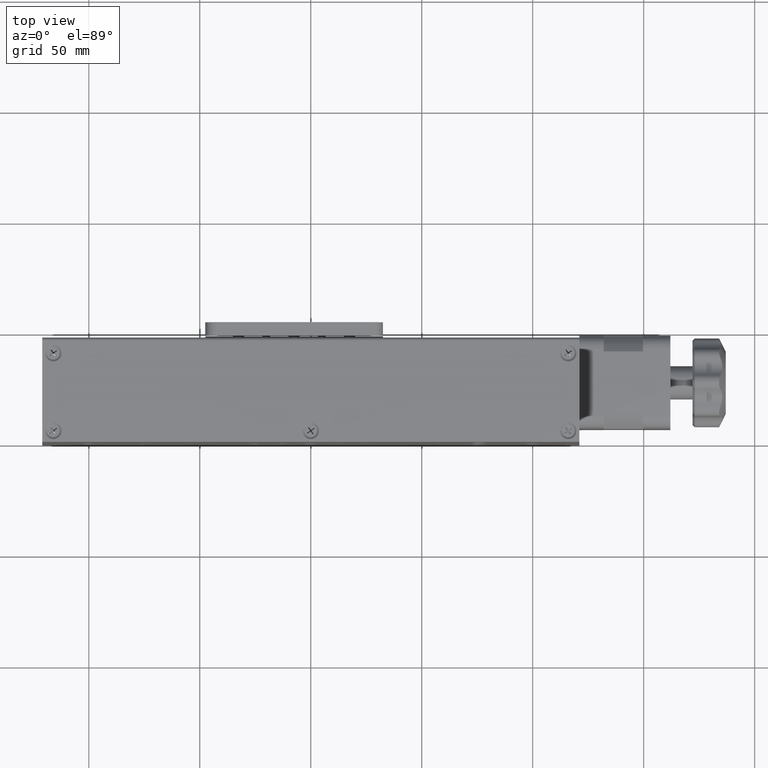
[diagram: clean part render]
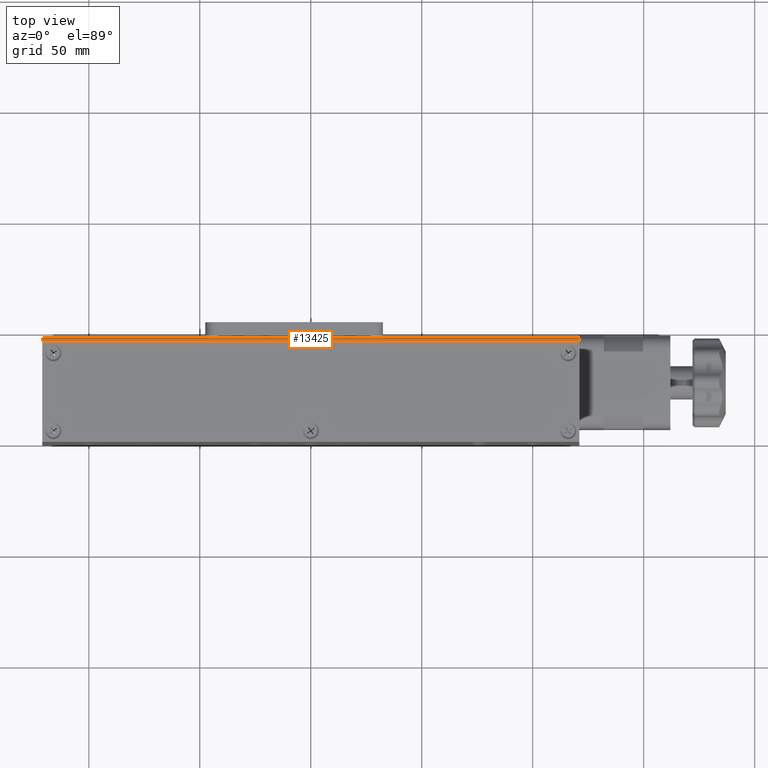
[diagram: same view with one face highlighted and labeled with its STEP entity id]
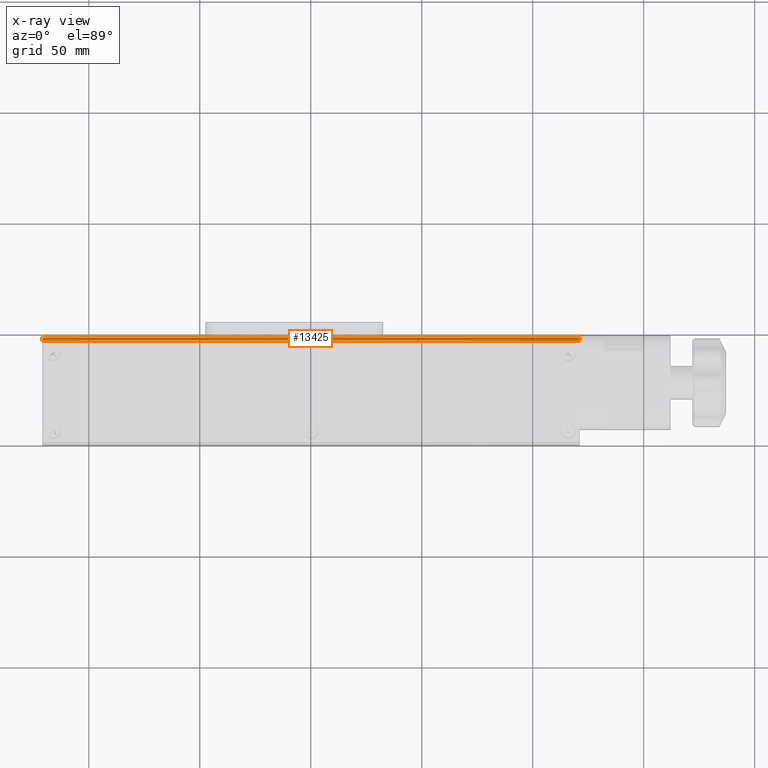
[diagram: x-ray of the same camera — body ghosted, the highlighted face saturated]
A machine part, top view. The second image highlights one B-rep face of the part: STEP entity #13425.
The next image is the same camera in x-ray: the body ghosted, the highlighted face saturated — about 0% of this face is hidden behind the body in this view.
In plain terms, the highlighted cylindrical surface (edge-blend (fillet) strip) has radius 1.5 mm, axis along (-1, -0, -0).
Its self-contained STEP definition (entity closure, byte-faithful):
#51 = CARTESIAN_POINT ( 'NONE',  ( 121.0000000000000000, 45.50000000000001400, 52.00000000000010700 ) ) ;
#614 = DIRECTION ( 'NONE',  ( -1.000000000000000000, -0.0000000000000000000, -0.0000000000000000000 ) ) ;
#646 = VERTEX_POINT ( 'NONE', #10705 ) ;
#684 = CIRCLE ( 'NONE', #2444, 1.500000000000001300 ) ;
#2112 = DIRECTION ( 'NONE',  ( 0.0000000000000000000, 0.0000000000000000000, -1.000000000000000000 ) ) ;
#2444 = AXIS2_PLACEMENT_3D ( 'NONE', #35089, #18527, #2112 ) ;
#3656 = FACE_OUTER_BOUND ( 'NONE', #11081, .T. ) ;
#10042 = EDGE_CURVE ( 'NONE', #33622, #646, #35377, .T. ) ;
#10276 = DIRECTION ( 'NONE',  ( 1.000000000000000000, 0.0000000000000000000, 0.0000000000000000000 ) ) ;
#10705 = CARTESIAN_POINT ( 'NONE',  ( -121.0000000000000000, 47.00000000000001400, 50.50000000000010700 ) ) ;
#11081 = EDGE_LOOP ( 'NONE', ( #28950, #16236, #27775, #28572 ) ) ;
#13350 = VECTOR ( 'NONE', #22843, 1000.000000000000000 ) ;
#13425 = ADVANCED_FACE ( 'NONE', ( #3656 ), #29431, .T. ) ;
#14400 = DIRECTION ( 'NONE',  ( 0.0000000000000000000, 0.0000000000000000000, 1.000000000000000000 ) ) ;
#14858 = CARTESIAN_POINT ( 'NONE',  ( -121.0000000000000000, 45.50000000000001400, 52.00000000000010700 ) ) ;
#14981 = EDGE_CURVE ( 'NONE', #33622, #24997, #32065, .T. ) ;
#15700 = EDGE_CURVE ( 'NONE', #24997, #29425, #22873, .T. ) ;
#16236 = ORIENTED_EDGE ( 'NONE', *, *, #15700, .F. ) ;
#16417 = VECTOR ( 'NONE', #16462, 1000.000000000000000 ) ;
#16462 = DIRECTION ( 'NONE',  ( -1.000000000000000000, -0.0000000000000000000, -0.0000000000000000000 ) ) ;
#18161 = CARTESIAN_POINT ( 'NONE',  ( 121.0000000000000000, 45.50000000000001400, 52.00000000000010700 ) ) ;
#18527 = DIRECTION ( 'NONE',  ( 1.000000000000000000, 0.0000000000000000000, 0.0000000000000000000 ) ) ;
#22843 = DIRECTION ( 'NONE',  ( -1.000000000000000000, -0.0000000000000000000, -0.0000000000000000000 ) ) ;
#22873 = LINE ( 'NONE', #51, #16417 ) ;
#24997 = VERTEX_POINT ( 'NONE', #18161 ) ;
#26766 = CARTESIAN_POINT ( 'NONE',  ( 121.0000000000000000, 45.50000000000001400, 50.50000000000010700 ) ) ;
#27775 = ORIENTED_EDGE ( 'NONE', *, *, #14981, .F. ) ;
#27940 = AXIS2_PLACEMENT_3D ( 'NONE', #26766, #10276, #29543 ) ;
#28572 = ORIENTED_EDGE ( 'NONE', *, *, #10042, .T. ) ;
#28950 = ORIENTED_EDGE ( 'NONE', *, *, #29620, .T. ) ;
#29425 = VERTEX_POINT ( 'NONE', #14858 ) ;
#29431 = CYLINDRICAL_SURFACE ( 'NONE', #32510, 1.500000000000001300 ) ;
#29543 = DIRECTION ( 'NONE',  ( 0.0000000000000000000, 0.0000000000000000000, -1.000000000000000000 ) ) ;
#29620 = EDGE_CURVE ( 'NONE', #646, #29425, #684, .T. ) ;
#30791 = CARTESIAN_POINT ( 'NONE',  ( 121.0000000000000000, 45.50000000000001400, 50.50000000000010700 ) ) ;
#32065 = CIRCLE ( 'NONE', #27940, 1.500000000000001300 ) ;
#32510 = AXIS2_PLACEMENT_3D ( 'NONE', #30791, #614, #14400 ) ;
#33622 = VERTEX_POINT ( 'NONE', #35061 ) ;
#33838 = CARTESIAN_POINT ( 'NONE',  ( 121.0000000000000000, 47.00000000000001400, 50.50000000000010700 ) ) ;
#35061 = CARTESIAN_POINT ( 'NONE',  ( 121.0000000000000000, 47.00000000000001400, 50.50000000000010700 ) ) ;
#35089 = CARTESIAN_POINT ( 'NONE',  ( -121.0000000000000000, 45.50000000000001400, 50.50000000000010700 ) ) ;
#35377 = LINE ( 'NONE', #33838, #13350 ) ;